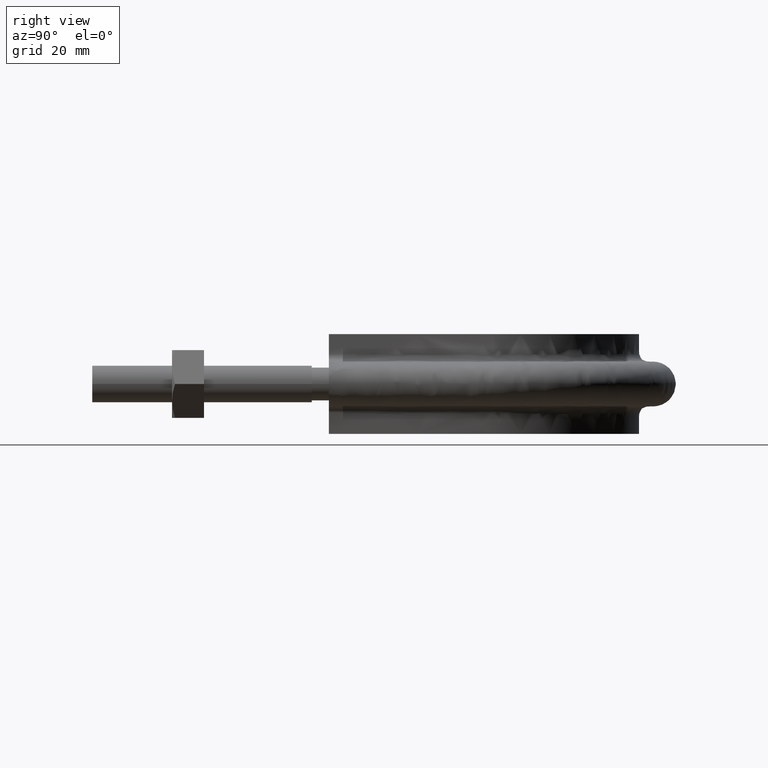
[diagram: clean part render]
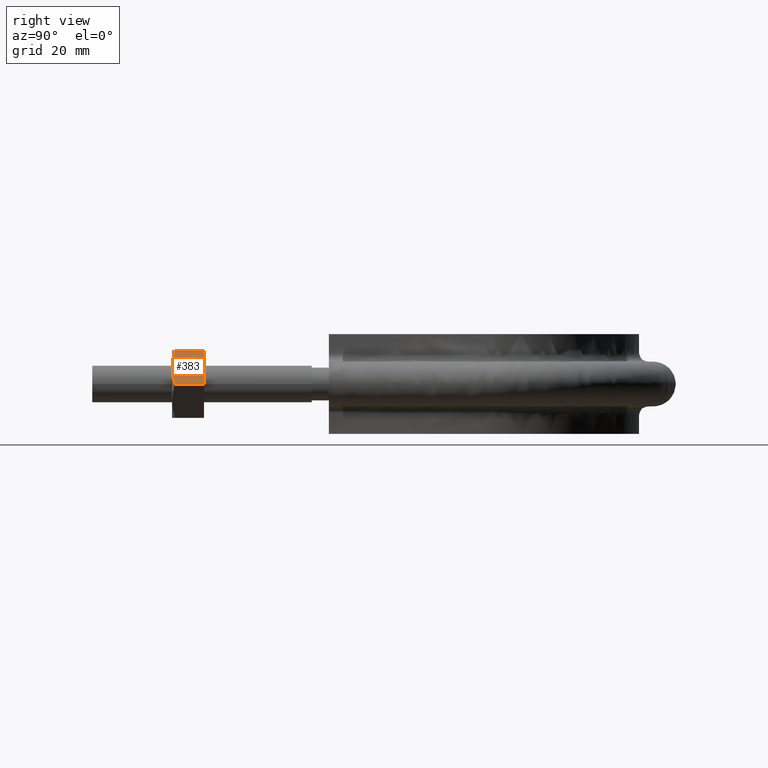
[diagram: same view with one face highlighted and labeled with its STEP entity id]
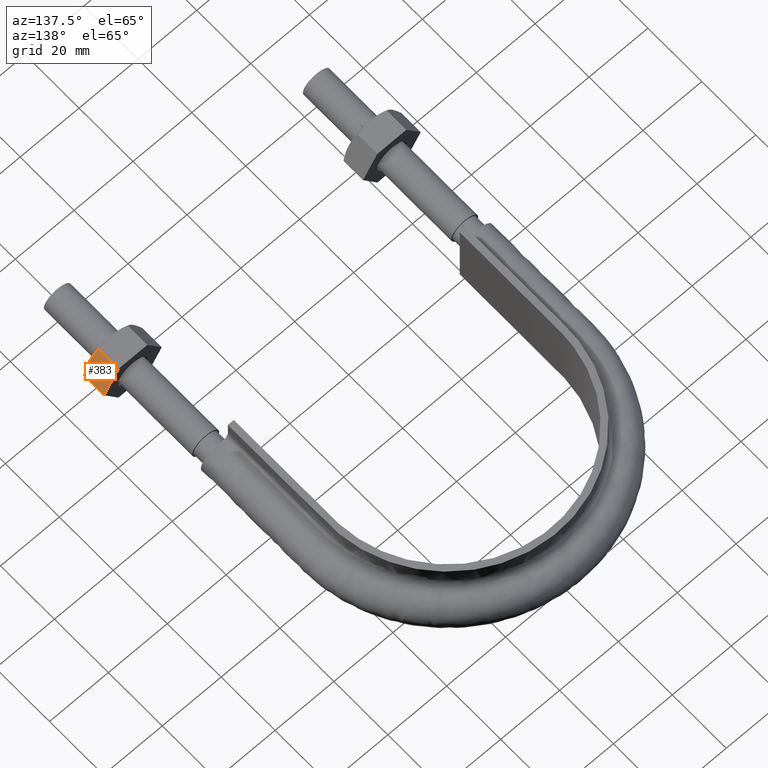
[diagram: same view with one face highlighted and labeled with its STEP entity id]
A machine part, right view. The second image highlights one B-rep face of the part: STEP entity #383.
A second angle (auxiliary view) of the same face is appended — the face is thin or edge-on in the first view.
In plain terms, the highlighted planar face has unit normal (-0.866, 0, -0.5).
Its self-contained STEP definition (entity closure, byte-faithful):
#383 = ADVANCED_FACE( '', ( #547 ), #548, .F. );
#547 = FACE_OUTER_BOUND( '', #1546, .T. );
#548 = PLANE( '', #1547 );
#1546 = EDGE_LOOP( '', ( #2040, #2041, #2042, #2043, #2044 ) );
#1547 = AXIS2_PLACEMENT_3D( '', #2045, #2046, #2047 );
#2040 = ORIENTED_EDGE( '', *, *, #2243, .F. );
#2041 = ORIENTED_EDGE( '', *, *, #2230, .F. );
#2042 = ORIENTED_EDGE( '', *, *, #2255, .F. );
#2043 = ORIENTED_EDGE( '', *, *, #2240, .F. );
#2044 = ORIENTED_EDGE( '', *, *, #2256, .F. );
#2045 = CARTESIAN_POINT( '', ( 48.9074772881118, 28.0000000000000, 8.50000000000000 ) );
#2046 = DIRECTION( '', ( -0.866025403784439, 2.42723201254762E-016, -0.500000000000000 ) );
#2047 = DIRECTION( '', ( -0.500000000000000, -1.34738443321881E-032, 0.866025403784439 ) );
#2230 = EDGE_CURVE( '', #2461, #2457, #2463, .T. );
#2240 = EDGE_CURVE( '', #2480, #2464, #2482, .T. );
#2243 = EDGE_CURVE( '', #2457, #2486, #2487, .T. );
#2255 = EDGE_CURVE( '', #2464, #2461, #2504, .F. );
#2256 = EDGE_CURVE( '', #2486, #2480, #2505, .T. );
#2457 = VERTEX_POINT( '', #3073 );
#2461 = VERTEX_POINT( '', #3082 );
#2463 = B_SPLINE_CURVE_WITH_KNOTS( '', 3, ( #3084, #3085, #3086, #3087, #3088, #3089 ), .UNSPECIFIED., .F., .F., ( 4, 2, 4 ), ( 1.12351022303838E-017, 0.00246745482903608, 0.00493490965807215 ), .UNSPECIFIED. );
#2464 = VERTEX_POINT( '', #3090 );
#2480 = VERTEX_POINT( '', #3110 );
#2482 = LINE( '', #3112, #3113 );
#2486 = VERTEX_POINT( '', #3117 );
#2487 = B_SPLINE_CURVE_WITH_KNOTS( '', 3, ( #3118, #3119, #3120, #3121, #3122, #3123 ), .UNSPECIFIED., .F., .F., ( 4, 2, 4 ), ( 9.81307786677359E-018, 0.00246745482903605, 0.00493490965807210 ), .UNSPECIFIED. );
#2504 = LINE( '', #3158, #3159 );
#2505 = LINE( '', #3160, #3161 );
#3073 = CARTESIAN_POINT( '', ( 51.3612159321677, 20.0000000000000, 4.25000000000001 ) );
#3082 = CARTESIAN_POINT( '', ( 53.7999656118192, 20.7505553499465, 0.0259616479013540 ) );
#3084 = CARTESIAN_POINT( '', ( 53.7999656118192, 20.7505553499465, 0.0259616479013426 ) );
#3085 = CARTESIAN_POINT( '', ( 53.4015017855063, 20.5215585493657, 0.716121240053449 ) );
#3086 = CARTESIAN_POINT( '', ( 52.9999375199991, 20.3328582843706, 1.41165095041601 ) );
#3087 = CARTESIAN_POINT( '', ( 52.1878690560105, 20.0716504305290, 2.81819478926868 ) );
#3088 = CARTESIAN_POINT( '', ( 51.7772989072631, 20.0000000000000, 3.52932314697043 ) );
#3089 = CARTESIAN_POINT( '', ( 51.3612159321677, 20.0000000000000, 4.25000000000001 ) );
#3090 = CARTESIAN_POINT( '', ( 53.7999656118192, 28.0000000000000, 0.0259616479013590 ) );
#3110 = CARTESIAN_POINT( '', ( 48.9224662525163, 28.0000000000000, 8.47403835209863 ) );
#3112 = CARTESIAN_POINT( '', ( 48.9112159321677, 28.0000000000000, 8.49352447854374 ) );
#3113 = VECTOR( '', #3378, 1000.00000000000 );
#3117 = CARTESIAN_POINT( '', ( 48.9224662525163, 20.7505553499465, 8.47403835209862 ) );
#3118 = CARTESIAN_POINT( '', ( 51.3612159321677, 20.0000000000000, 4.25000000000001 ) );
#3119 = CARTESIAN_POINT( '', ( 50.9451329570723, 20.0000000000000, 4.97067685302958 ) );
#3120 = CARTESIAN_POINT( '', ( 50.5345628083249, 20.0716504305290, 5.68180521073132 ) );
#3121 = CARTESIAN_POINT( '', ( 49.7224943443363, 20.3328582843706, 7.08834904958398 ) );
#3122 = CARTESIAN_POINT( '', ( 49.3209300788291, 20.5215585493656, 7.78387875994651 ) );
#3123 = CARTESIAN_POINT( '', ( 48.9224662525163, 20.7505553499465, 8.47403835209861 ) );
#3158 = CARTESIAN_POINT( '', ( 53.7999656118192, 28.0000000000000, 0.0259616479013607 ) );
#3159 = VECTOR( '', #3403, 1000.00000000000 );
#3160 = CARTESIAN_POINT( '', ( 48.9224662525163, 28.0000000000000, 8.47403835209863 ) );
#3161 = VECTOR( '', #3404, 1000.00000000000 );
#3378 = DIRECTION( '', ( 0.500000000000000, -6.94336247799367E-017, -0.866025403784439 ) );
#3403 = DIRECTION( '', ( 2.44921270764475E-016, 1.00000000000000, 6.12303176911189E-017 ) );
#3404 = DIRECTION( '', ( 2.44921270764475E-016, 1.00000000000000, 6.12303176911189E-017 ) );